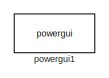
[diagram: root canvas - part 1/3, top left region]
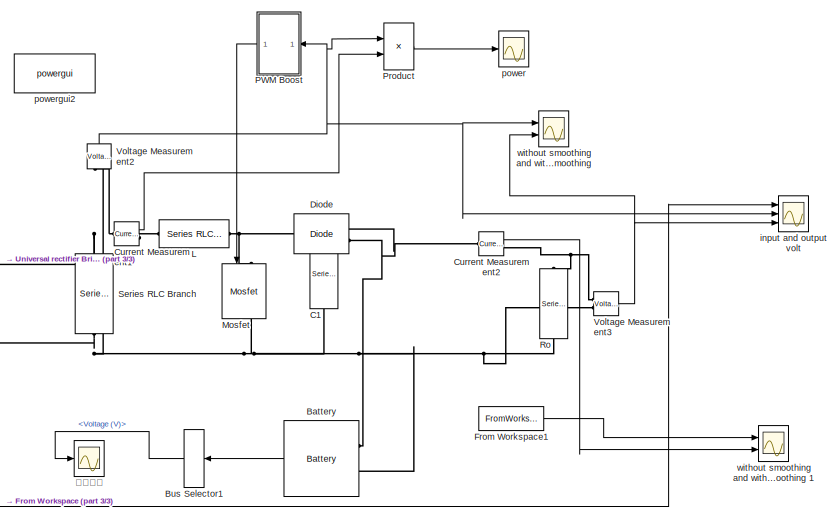
[diagram: root canvas - part 2/3, bottom right region]
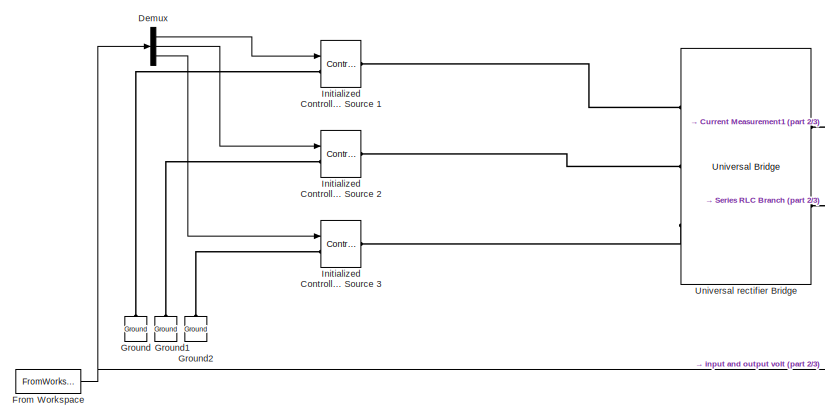
[diagram: root canvas - part 3/3, bottom left region]
MODEL slx_0b43be50611e
KIND model
CONFIG AbsTol = auto
CONFIG EnableMultiTasking = on
CONFIG FixedStep = auto
CONFIG MaxStep = auto
CONFIG MinStep = auto
CONFIG RelTol = 1e-3
CONFIG SampleTimeConstraint = Unconstrained
CONFIG SolverName = ode45
CONFIG StartTime = 50
CONFIG StopTime = 60
BLOCK [Reference] Battery  REF=spsBatteryLib/Battery
  Ports = [0, 1, 0, 0, 0, 2]
  SourceBlock = spsBatteryLib/Battery
  SourceProductBaseCode = PS
  SourceType = Battery
BLOCK [BusSelector] Bus Selector1
  NameLocation = top
  OutputSignals = Voltage (V)
  Ports = [1, 1]
BLOCK [Reference] C1  REF=spsSeriesRLCBranchLib/Series RLC Branch
  NameLocation = left
  Ports = [0, 0, 0, 0, 0, 1, 1]
  SourceBlock = spsSeriesRLCBranchLib/Series RLC Branch
  SourceProductBaseCode = PS
  SourceType = Series RLC Branch
BLOCK [Reference] Current Measurement1  REF=spsCurrentMeasurementLib/Current Measurement
  Ports = [0, 1, 0, 0, 0, 1, 1]
  SourceBlock = spsCurrentMeasurementLib/Current Measurement
  SourceProductBaseCode = PS
  SourceType = Current Measurement
  UserDataPersistent = on
BLOCK [Reference] Current Measurement2  REF=spsCurrentMeasurementLib/Current Measurement
  Ports = [0, 1, 0, 0, 0, 1, 1]
  SourceBlock = spsCurrentMeasurementLib/Current Measurement
  SourceProductBaseCode = PS
  SourceType = Current Measurement
  UserDataPersistent = on
BLOCK [Demux] Demux
  Outputs = 3
  Ports = [1, 3]
BLOCK [Reference] Diode  REF=spsDiodeLib/Diode
  Ports = [0, 1, 0, 0, 0, 1, 1]
  SourceBlock = spsDiodeLib/Diode
  SourceProductBaseCode = PS
  SourceType = Diode
BLOCK [FromWorkspace] From Workspace
  VariableName = vabc
BLOCK [FromWorkspace] From Workspace1
  VariableName = iabc
BLOCK [Reference] Ground  REF=spsGroundLib/Ground
  NameLocation = right
  Ports = [0, 0, 0, 0, 0, 1]
  SourceBlock = spsGroundLib/Ground
  SourceProductBaseCode = PS
  SourceType = Ground
BLOCK [Reference] Ground1  REF=spsGroundLib/Ground
  NameLocation = right
  Ports = [0, 0, 0, 0, 0, 1]
  SourceBlock = spsGroundLib/Ground
  SourceProductBaseCode = PS
  SourceType = Ground
BLOCK [Reference] Ground2  REF=spsGroundLib/Ground
  NameLocation = right
  Ports = [0, 0, 0, 0, 0, 1]
  SourceBlock = spsGroundLib/Ground
  SourceProductBaseCode = PS
  SourceType = Ground
BLOCK [Reference] Initialized Controlled Voltage Source 1  REF=spsControlledVoltageSourceLib/Controlled Voltage Source
  AttributesFormatString = \n
  Description = source block
  Ports = [1, 0, 0, 0, 0, 1, 1]
  SourceBlock = spsControlledVoltageSourceLib/Controlled Voltage Source
  SourceProductBaseCode = PS
  SourceType = Controlled Voltage Source
BLOCK [Reference] Initialized Controlled Voltage Source 2  REF=spsControlledVoltageSourceLib/Controlled Voltage Source
  AttributesFormatString = \n
  Description = source block
  Ports = [1, 0, 0, 0, 0, 1, 1]
  SourceBlock = spsControlledVoltageSourceLib/Controlled Voltage Source
  SourceProductBaseCode = PS
  SourceType = Controlled Voltage Source
BLOCK [Reference] Initialized Controlled Voltage Source 3  REF=spsControlledVoltageSourceLib/Controlled Voltage Source
  AttributesFormatString = \n
  Description = source block
  Ports = [1, 0, 0, 0, 0, 1, 1]
  SourceBlock = spsControlledVoltageSourceLib/Controlled Voltage Source
  SourceProductBaseCode = PS
  SourceType = Controlled Voltage Source
BLOCK [Reference] L  REF=spsSeriesRLCBranchLib/Series RLC Branch
  Ports = [0, 0, 0, 0, 0, 1, 1]
  SourceBlock = spsSeriesRLCBranchLib/Series RLC Branch
  SourceProductBaseCode = PS
  SourceType = Series RLC Branch
BLOCK [Reference] Mosfet  REF=spsMosfetLib/Mosfet
  NameLocation = left
  Ports = [1, 1, 0, 0, 0, 1, 1]
  SourceBlock = spsMosfetLib/Mosfet
  SourceProductBaseCode = PS
  SourceType = Mosfet
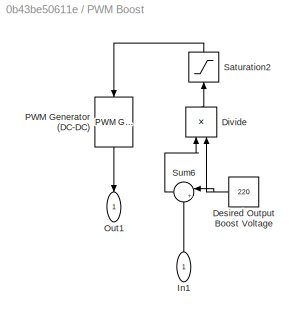
BLOCK [SubSystem] PWM Boost
  NameLocation = top
  Ports = [1, 1]
  RequestExecContextInheritance = off
BLOCK [Constant] PWM Boost/Desired Output Boost Voltage
  NameLocation = top
  Value = 220
BLOCK [Product] PWM Boost/Divide
  Inputs = */
  NameLocation = right
  Ports = [2, 1]
BLOCK [Inport] PWM Boost/In1
  NameLocation = right
BLOCK [Outport] PWM Boost/Out1
  NameLocation = left
  VectorParamsAs1DForOutWhenUnconnected = off
BLOCK [Reference] PWM Boost/PWM Generator (DC-DC)  REF=spsPWMGeneratorDCDCLib/PWM Generator
(DC-DC)
  NameLocation = left
  Ports = [1, 1]
  SourceBlock = spsPWMGeneratorDCDCLib/PWM Generator\n(DC-DC)
  SourceProductBaseCode = PS
  SourceType = PWM Generator (DC-DC)
BLOCK [Saturate] PWM Boost/Saturation2
  LowerLimit = 0.1
  NameLocation = right
  UpperLimit = 0.95
BLOCK [Sum] PWM Boost/Sum6
  Inputs = |+-
  NameLocation = top
  Ports = [2, 1]
BLOCK [Product] Product
  Ports = [2, 1]
BLOCK [Reference] Ro  REF=spsSeriesRLCBranchLib/Series RLC Branch
  NameLocation = left
  Ports = [0, 0, 0, 0, 0, 1, 1]
  SourceBlock = spsSeriesRLCBranchLib/Series RLC Branch
  SourceProductBaseCode = PS
  SourceType = Series RLC Branch
BLOCK [Reference] Series RLC Branch  REF=spsSeriesRLCBranchLib/Series RLC Branch
  NameLocation = right
  Ports = [0, 0, 0, 0, 0, 1, 1]
  SourceBlock = spsSeriesRLCBranchLib/Series RLC Branch
  SourceProductBaseCode = PS
  SourceType = Series RLC Branch
BLOCK [Reference] Universal rectifier Bridge  REF=spsUniversalBridgeLib/Universal Bridge
  NameLocation = top
  Ports = [0, 0, 0, 0, 0, 3, 2]
  SourceBlock = spsUniversalBridgeLib/Universal Bridge
  SourceProductBaseCode = PS
  SourceType = Universal Bridge
BLOCK [Reference] Voltage Measurement2  REF=spsVoltageMeasurementLib/Voltage Measurement
  NameLocation = right
  Ports = [0, 1, 0, 0, 0, 2]
  SourceBlock = spsVoltageMeasurementLib/Voltage Measurement
  SourceProductBaseCode = PS
  SourceType = Voltage Measurement
BLOCK [Reference] Voltage Measurement3  REF=spsVoltageMeasurementLib/Voltage Measurement
  Ports = [0, 1, 0, 0, 0, 2]
  SourceBlock = spsVoltageMeasurementLib/Voltage Measurement
  SourceProductBaseCode = PS
  SourceType = Voltage Measurement
BLOCK [Scope] input and output volt
  Floating = off
  NumInputPorts = 3
  Ports = [3]
  ScopeSpecificationString = Simulink.scopes.TimeScopeBlockCfg('CurrentConfiguration', extmgr.ConfigurationSet(extmgr.Configuration('Core','General UI',true),extmgr.Configuration('Core','Source UI',true),extmgr.Configuration('Sources','WiredSimulink',true),extmgr.Configuration('Visuals','Time Domain',true,'SerializedDisplays',{struct('MinYLimReal','-48.59013','MaxYLimReal','56.79385','YLabelReal','','MinYLimMag','0.00000','Ma...<+2842ch>
BLOCK [Scope] power
  Floating = off
  NumInputPorts = 1
  Ports = [1]
  ScopeSpecificationString = Simulink.scopes.TimeScopeBlockCfg('CurrentConfiguration', extmgr.ConfigurationSet(extmgr.Configuration('Core','General UI',true),extmgr.Configuration('Core','Source UI',true),extmgr.Configuration('Sources','WiredSimulink',true,'DataLoggingVariableName','ScopeData1'),extmgr.Configuration('Visuals','Time Domain',true,'SerializedDisplays',{struct('MinYLimReal','-54933.23698','MaxYLimReal','494131.684...<+1518ch>
BLOCK [Reference] powergui1  REF=spspowerguiLib/powergui
  Ports = []
  Priority = 1
  SourceBlock = spspowerguiLib/powergui
  SourceProductBaseCode = PS
  SourceType = PSB option menu block
BLOCK [Reference] powergui2  REF=spspowerguiLib/powergui
  Ports = []
  Priority = 1
  SourceBlock = spspowerguiLib/powergui
  SourceProductBaseCode = PS
  SourceType = PSB option menu block
BLOCK [Scope] without smoothing and with smoothing 
  Floating = off
  NumInputPorts = 2
  Ports = [2]
  ScopeSpecificationString = Simulink.scopes.TimeScopeBlockCfg('CurrentConfiguration', extmgr.ConfigurationSet(extmgr.Configuration('Core','General UI',true),extmgr.Configuration('Core','Source UI',true),extmgr.Configuration('Sources','WiredSimulink',true,'DataLoggingVariableName','ScopeData2'),extmgr.Configuration('Visuals','Time Domain',true,'SerializedDisplays',{struct('MinYLimReal','-40.25401','MaxYLimReal','362.29596','Y...<+2126ch>
BLOCK [Scope] without smoothing and with smoothing 1
  Floating = off
  NumInputPorts = 2
  Ports = [2]
  ScopeSpecificationString = Simulink.scopes.TimeScopeBlockCfg('CurrentConfiguration', extmgr.ConfigurationSet(extmgr.Configuration('Core','General UI',true),extmgr.Configuration('Core','Source UI',true),extmgr.Configuration('Sources','WiredSimulink',true,'DataLoggingVariableName','ScopeData2'),extmgr.Configuration('Visuals','Time Domain',true,'SerializedDisplays',{struct('MinYLimReal','-1.6329','MaxYLimReal','1.63294','YLabe...<+2155ch>
BLOCK [Scope] رخمف
  Floating = off
  NumInputPorts = 1
  Ports = [1]
  ScopeSpecificationString = Simulink.scopes.TimeScopeBlockCfg('CurrentConfiguration', extmgr.ConfigurationSet(extmgr.Configuration('Core','General UI',true),extmgr.Configuration('Core','Source UI',true),extmgr.Configuration('Sources','WiredSimulink',true,'DataLoggingVariableName','ScopeData1'),extmgr.Configuration('Visuals','Time Domain',true,'SerializedDisplays',{struct('MinYLimReal','-22.32772','MaxYLimReal','200.95626','Y...<+1504ch>
LINE Battery:1 -> Bus Selector1:1
LINE Bus Selector1:1 -> رخمف:1
LINE Current Measurement1:1 -> Product:2
LINE Current Measurement2:1 -> without smoothing and with smoothing 1:2
LINE Demux:1 -> Initialized Controlled Voltage Source 1:1
LINE Demux:2 -> Initialized Controlled Voltage Source 2:1
LINE Demux:3 -> Initialized Controlled Voltage Source 3:1
LINE From Workspace1:1 -> without smoothing and with smoothing 1:1
NET From Workspace:1 -> Demux:1, input and output volt:1
NET PWM Boost/Desired Output Boost Voltage:1 -> PWM Boost/Divide:2, PWM Boost/Sum6:1
LINE PWM Boost/Divide:1 -> PWM Boost/Saturation2:1
LINE PWM Boost/In1:1 -> PWM Boost/Sum6:2
LINE PWM Boost/PWM Generator (DC-DC):1 -> PWM Boost/Out1:1
LINE PWM Boost/Saturation2:1 -> PWM Boost/PWM Generator (DC-DC):1
LINE PWM Boost/Sum6:1 -> PWM Boost/Divide:1
LINE PWM Boost:1 -> Mosfet:1
LINE Product:1 -> power:1
NET Voltage Measurement2:1 -> PWM Boost:1, Product:1, input and output volt:2, without smoothing and with smoothing :1
NET Voltage Measurement3:1 -> input and output volt:3, without smoothing and with smoothing :2
PNET net1: Battery:LConn1 -- C1:LConn1 -- Current Measurement2:LConn1 -- Diode:RConn1
PNET net2: Battery:LConn2 -- C1:RConn1 -- Mosfet:RConn1 -- Ro:RConn1 -- Series RLC Branch:LConn1 -- Universal rectifier Bridge:RConn2 -- Voltage Measurement2:LConn2 -- Voltage Measurement3:LConn2
PNET net3: Current Measurement1:LConn1 -- Series RLC Branch:RConn1 -- Universal rectifier Bridge:RConn1 -- Voltage Measurement2:LConn1
PLINE Current Measurement1:RConn1 -- L:LConn1
PNET net4: Current Measurement2:RConn1 -- Ro:LConn1 -- Voltage Measurement3:LConn1
PNET net5: Diode:LConn1 -- L:RConn1 -- Mosfet:LConn1
PLINE Ground1:LConn1 -- Initialized Controlled Voltage Source 2:LConn1
PLINE Ground2:LConn1 -- Initialized Controlled Voltage Source 3:LConn1
PLINE Ground:LConn1 -- Initialized Controlled Voltage Source 1:LConn1
PLINE Initialized Controlled Voltage Source 1:RConn1 -- Universal rectifier Bridge:LConn1
PLINE Initialized Controlled Voltage Source 2:RConn1 -- Universal rectifier Bridge:LConn2
PLINE Initialized Controlled Voltage Source 3:RConn1 -- Universal rectifier Bridge:LConn3
note: NET lines group one-source signal fan-out (src -> all destinations, sorted); 1:1 wires keep LINE; PNET lines group multi-terminal physical nets as a canonical sorted terminal list (undirected conserving connections); 2-terminal nets keep the pairwise PLINE form
